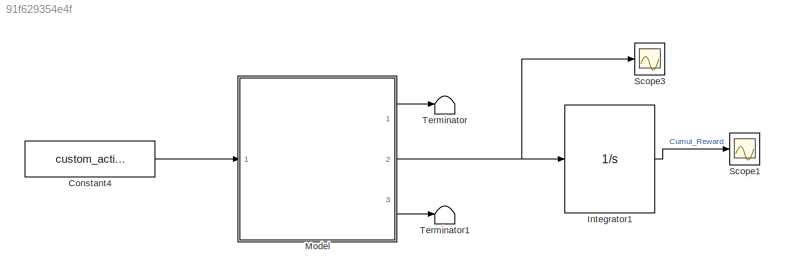
MODEL slx_91f629354e4f
KIND model
CONFIG AbsTol = auto
CONFIG EnableMultiTasking = off
CONFIG FixedStep = auto
CONFIG MaxStep = auto
CONFIG MinStep = auto
CONFIG RelTol = 1e-3
CONFIG SampleTimeConstraint = Unconstrained
CONFIG Solver = VariableStepAuto
CONFIG SolverName = VariableStepAuto
CONFIG StartTime = 0.0
CONFIG StopTime = 10.0
BLOCK [Constant] Constant4
  Value = custom_action
BLOCK [Integrator] Integrator1
  Ports = [1, 1]
  ZeroCross = off
BLOCK [ModelReference] Model
  ModelNameDialog = bare_system
  ModelReferenceVersion = 1.161
  ParameterArgumentNames = lambda1Arg,lambda2Arg,random_seedArg,conf_lambdaArg,risk_delayArg,risk_delay_lengthArg,lower_limitArg,upper_limitArg,int_lambdaArg
  ParameterArgumentValues = 7,1,10,3,1,0,1,100,3
  Ports = [1, 3]
  UsingDefaultArgumentValue = 0,0,0,0,0,0,0,0,0
BLOCK [Scope] Scope1
  Floating = off
  NumInputPorts = 1
  Ports = [1]
  ScopeSpecificationString = Simulink.scopes.TimeScopeBlockCfg('CurrentConfiguration', extmgr.ConfigurationSet(extmgr.Configuration('Core','General UI',true),extmgr.Configuration('Core','Source UI',true),extmgr.Configuration('Sources','WiredSimulink',true),extmgr.Configuration('Visuals','Time Domain',true,'SerializedDisplays',{struct('MinYLimReal','-4050.00000','MaxYLimReal','450.00000','YLabelReal','','MinYLimMag','  0.00000...<+1410ch>
BLOCK [Scope] Scope3
  Floating = off
  NumInputPorts = 1
  Ports = [1]
  ScopeSpecificationString = Simulink.scopes.TimeScopeBlockCfg('CurrentConfiguration', extmgr.ConfigurationSet(extmgr.Configuration('Core','General UI',true),extmgr.Configuration('Core','Source UI',true),extmgr.Configuration('Sources','WiredSimulink',true,'DataLoggingVariableName','ScopeData1'),extmgr.Configuration('Visuals','Time Domain',true,'SerializedDisplays',{struct('MinYLimReal','-163.38681','MaxYLimReal','18.15409','Y...<+1438ch>
BLOCK [Terminator] Terminator
BLOCK [Terminator] Terminator1
LINE Constant4:1 -> Model:1
LINE Integrator1:1 -> Scope1:1
LINE Model:1 -> Terminator:1
NET Model:2 -> Integrator1:1, Scope3:1
LINE Model:3 -> Terminator1:1
note: NET lines group one-source signal fan-out (src -> all destinations, sorted); 1:1 wires keep LINE
